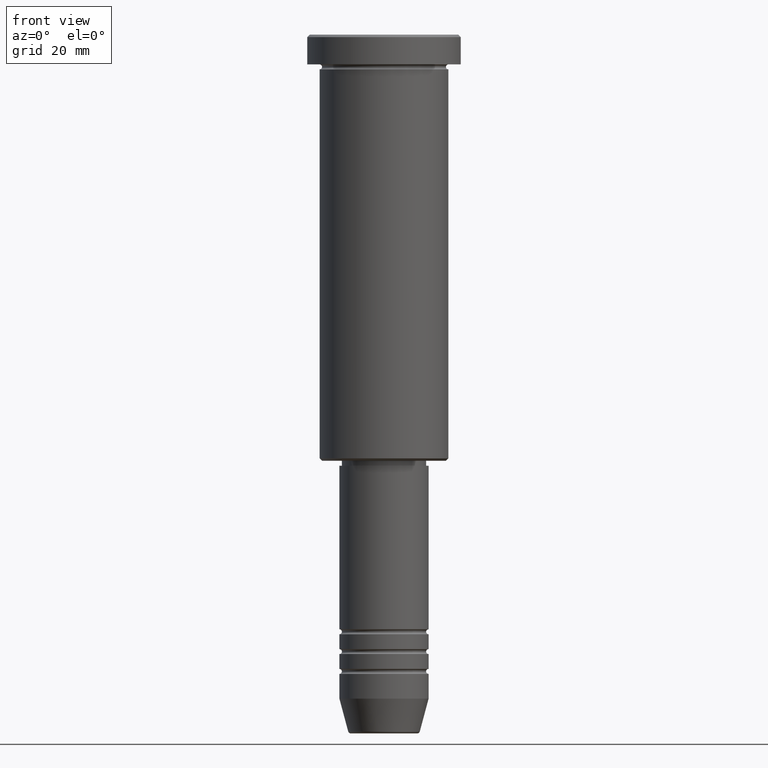
[diagram: clean part render]
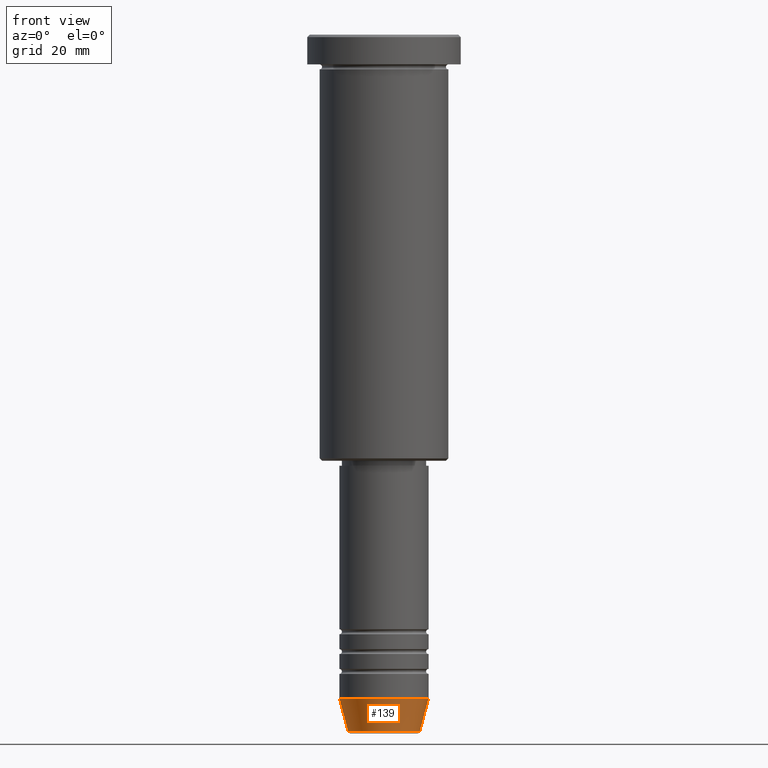
[diagram: same view with one face highlighted and labeled with its STEP entity id]
A machine part, front view. The second image highlights one B-rep face of the part: STEP entity #139.
In plain terms, the highlighted conical surface has half-angle 15 deg.
Its self-contained STEP definition (entity closure, byte-faithful):
#57 = AXIS2_PLACEMENT_3D ( 'NONE', #532, #886, #456 ) ;
#104 = ORIENTED_EDGE ( 'NONE', *, *, #608, .T. ) ;
#139 = ADVANCED_FACE ( 'NONE', ( #926 ), #174, .T. ) ;
#174 = CONICAL_SURFACE ( 'NONE', #192, 9.000000000000000000, 0.2617993877991500740 ) ;
#192 = AXIS2_PLACEMENT_3D ( 'NONE', #288, #847, #207 ) ;
#200 = VERTEX_POINT ( 'NONE', #1117 ) ;
#207 = DIRECTION ( 'NONE',  ( 1.000000000000000000, 0.000000000000000000, 0.000000000000000000 ) ) ;
#271 = CIRCLE ( 'NONE', #57, 7.223655072137188604 ) ;
#286 = VECTOR ( 'NONE', #359, 1000.000000000000000 ) ;
#288 = CARTESIAN_POINT ( 'NONE',  ( 0.000000000000000000, 0.000000000000000000, -134.0000000000000000 ) ) ;
#292 = LINE ( 'NONE', #834, #324 ) ;
#324 = VECTOR ( 'NONE', #755, 1000.000000000000000 ) ;
#359 = DIRECTION ( 'NONE',  ( -0.2588190451025213501, 3.169619151431772337E-17, 0.9659258262890680902 ) ) ;
#456 = DIRECTION ( 'NONE',  ( 1.000000000000000000, 0.000000000000000000, 0.000000000000000000 ) ) ;
#516 = EDGE_CURVE ( 'NONE', #200, #1115, #271, .T. ) ;
#528 = EDGE_LOOP ( 'NONE', ( #586, #790, #104, #976 ) ) ;
#532 = CARTESIAN_POINT ( 'NONE',  ( 0.000000000000000000, 0.000000000000000000, -140.6294095225512990 ) ) ;
#586 = ORIENTED_EDGE ( 'NONE', *, *, #901, .F. ) ;
#608 = EDGE_CURVE ( 'NONE', #1115, #683, #292, .T. ) ;
#626 = AXIS2_PLACEMENT_3D ( 'NONE', #917, #813, #1023 ) ;
#633 = CARTESIAN_POINT ( 'NONE',  ( -9.000000000000000000, 1.102182119232617714E-15, -134.0000000000000000 ) ) ;
#683 = VERTEX_POINT ( 'NONE', #1010 ) ;
#755 = DIRECTION ( 'NONE',  ( 0.2588190451025213501, 0.000000000000000000, 0.9659258262890680902 ) ) ;
#779 = CIRCLE ( 'NONE', #626, 9.000000000000000000 ) ;
#790 = ORIENTED_EDGE ( 'NONE', *, *, #516, .T. ) ;
#813 = DIRECTION ( 'NONE',  ( -0.000000000000000000, -0.000000000000000000, 1.000000000000000000 ) ) ;
#834 = CARTESIAN_POINT ( 'NONE',  ( 9.000000000000000000, 0.000000000000000000, -134.0000000000000000 ) ) ;
#847 = DIRECTION ( 'NONE',  ( -0.000000000000000000, -0.000000000000000000, 1.000000000000000000 ) ) ;
#886 = DIRECTION ( 'NONE',  ( -0.000000000000000000, -0.000000000000000000, 1.000000000000000000 ) ) ;
#898 = CARTESIAN_POINT ( 'NONE',  ( 7.223655072137188604, 0.000000000000000000, -140.6294095225512990 ) ) ;
#901 = EDGE_CURVE ( 'NONE', #200, #951, #909, .T. ) ;
#909 = LINE ( 'NONE', #633, #286 ) ;
#917 = CARTESIAN_POINT ( 'NONE',  ( 0.000000000000000000, 0.000000000000000000, -134.0000000000000000 ) ) ;
#926 = FACE_OUTER_BOUND ( 'NONE', #528, .T. ) ;
#951 = VERTEX_POINT ( 'NONE', #1091 ) ;
#976 = ORIENTED_EDGE ( 'NONE', *, *, #1176, .F. ) ;
#1010 = CARTESIAN_POINT ( 'NONE',  ( 9.000000000000000000, 0.000000000000000000, -134.0000000000000000 ) ) ;
#1023 = DIRECTION ( 'NONE',  ( 1.000000000000000000, 0.000000000000000000, 0.000000000000000000 ) ) ;
#1091 = CARTESIAN_POINT ( 'NONE',  ( -9.000000000000000000, 1.102182119232617714E-15, -134.0000000000000000 ) ) ;
#1115 = VERTEX_POINT ( 'NONE', #898 ) ;
#1117 = CARTESIAN_POINT ( 'NONE',  ( -7.223655072137189492, 9.934123627281765110E-16, -140.6294095225512990 ) ) ;
#1176 = EDGE_CURVE ( 'NONE', #951, #683, #779, .T. ) ;